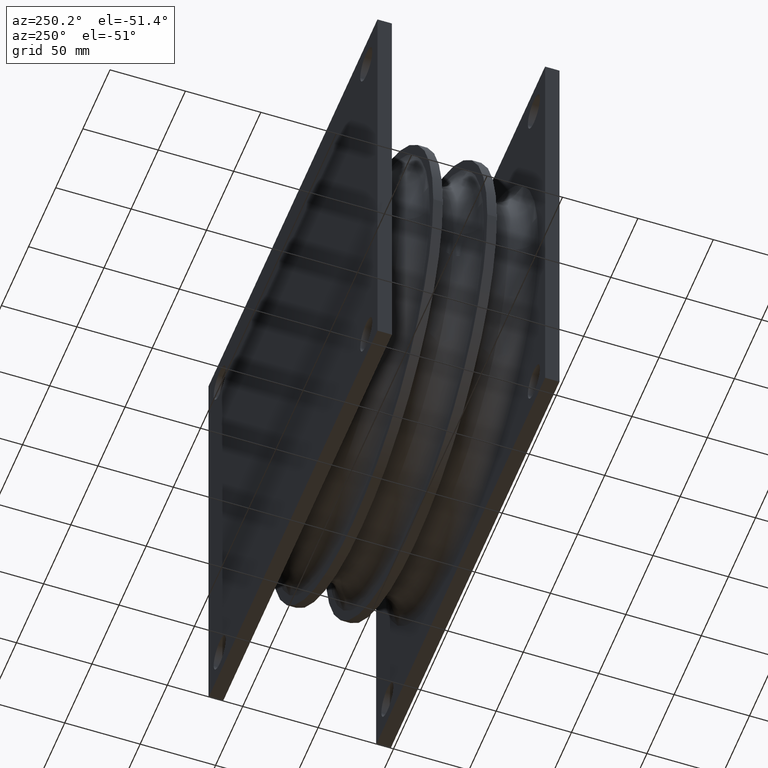
[diagram: clean part render]
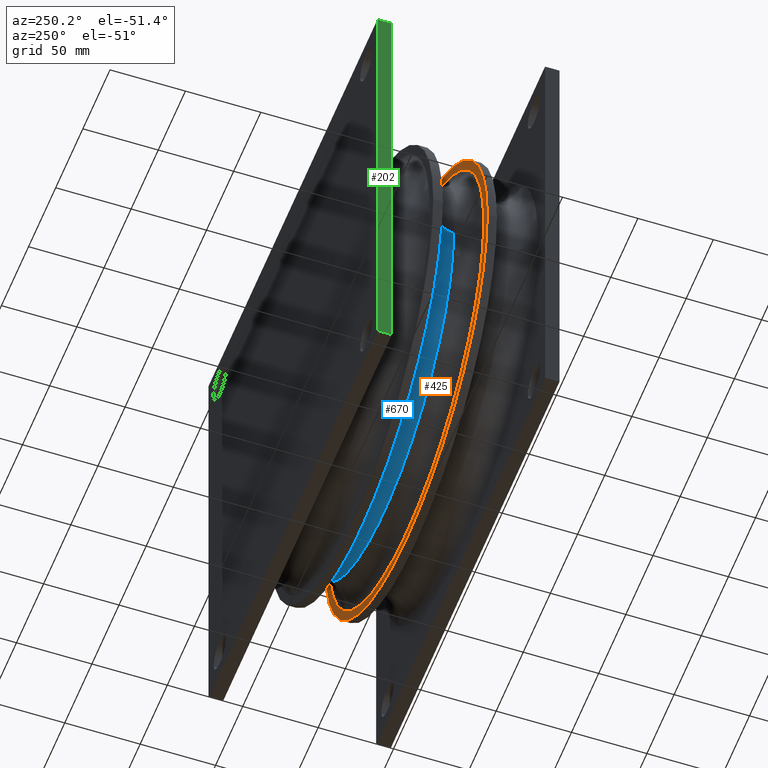
[diagram: same view with three faces highlighted in distinct colors, each labeled with its STEP entity id]
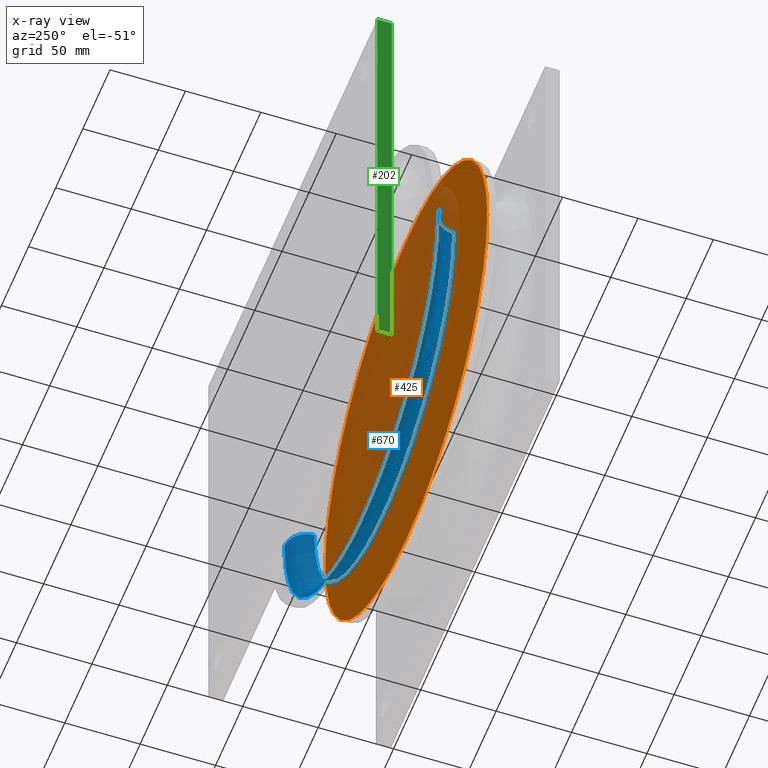
[diagram: x-ray of the same camera — body ghosted, the three highlighted faces saturated]
A machine part, auxiliary view with three faces highlighted in distinct colors.
The next image is the same camera in x-ray (body ghosted, the three faces saturated) — at least one of them is partly hidden behind the body in this view.
Their STEP definitions:

[orange] entity #425 — the highlighted planar face has unit normal (-0, -1, 0).
#172 = ORIENTED_EDGE ( 'NONE', *, *, #1426, .T. ) ;
#228 = FACE_OUTER_BOUND ( 'NONE', #550, .T. ) ;
#294 = CARTESIAN_POINT ( 'NONE',  ( -2.606660711985146300E-017, 1.795000000000001900, 0.0000000000000000000 ) ) ;
#299 = AXIS2_PLACEMENT_3D ( 'NONE', #620, #1223, #1487 ) ;
#396 = CARTESIAN_POINT ( 'NONE',  ( -2.606660711985146300E-017, 1.795000000000001900, 0.0000000000000000000 ) ) ;
#425 = ADVANCED_FACE ( 'NONE', ( #228 ), #882, .F. ) ;
#429 = CIRCLE ( 'NONE', #525, 5.875000000000000000 ) ;
#525 = AXIS2_PLACEMENT_3D ( 'NONE', #294, #1156, #1273 ) ;
#537 = DIRECTION ( 'NONE',  ( -1.000000000000000000, 0.0000000000000000000, 0.0000000000000000000 ) ) ;
#542 = EDGE_CURVE ( 'NONE', #1463, #1029, #1255, .T. ) ;
#550 = EDGE_LOOP ( 'NONE', ( #880, #172 ) ) ;
#616 = CARTESIAN_POINT ( 'NONE',  ( 5.875000000000000000, 1.795000000000001900, 7.194799944990700800E-016 ) ) ;
#620 = CARTESIAN_POINT ( 'NONE',  ( 4.133182947122315700E-016, 1.795000000000001900, 0.0000000000000000000 ) ) ;
#880 = ORIENTED_EDGE ( 'NONE', *, *, #542, .T. ) ;
#882 = PLANE ( 'NONE',  #299 ) ;
#941 = CARTESIAN_POINT ( 'NONE',  ( -5.875000000000000000, 1.795000000000001900, 0.0000000000000000000 ) ) ;
#1029 = VERTEX_POINT ( 'NONE', #616 ) ;
#1156 = DIRECTION ( 'NONE',  ( 1.010333609296569200E-017, 1.000000000000000000, -0.0000000000000000000 ) ) ;
#1201 = AXIS2_PLACEMENT_3D ( 'NONE', #396, #1271, #537 ) ;
#1223 = DIRECTION ( 'NONE',  ( -1.010333609296569200E-017, -1.000000000000000000, 0.0000000000000000000 ) ) ;
#1255 = CIRCLE ( 'NONE', #1201, 5.875000000000000000 ) ;
#1271 = DIRECTION ( 'NONE',  ( 1.010333609296569200E-017, 1.000000000000000000, -0.0000000000000000000 ) ) ;
#1273 = DIRECTION ( 'NONE',  ( -1.000000000000000000, 0.0000000000000000000, 0.0000000000000000000 ) ) ;
#1426 = EDGE_CURVE ( 'NONE', #1029, #1463, #429, .T. ) ;
#1463 = VERTEX_POINT ( 'NONE', #941 ) ;
#1487 = DIRECTION ( 'NONE',  ( 1.000000000000000000, -1.010333609296569200E-017, 0.0000000000000000000 ) ) ;

[blue] entity #670 — the highlighted toroidal blend (fillet) surface has major radius 142.875 mm and minor (blend) radius 14.732 mm.
#29 = DIRECTION ( 'NONE',  ( 1.224646799147353200E-016, -2.765582676147827700E-032, 1.000000000000000000 ) ) ;
#101 = CIRCLE ( 'NONE', #1091, 5.625000000000000000 ) ;
#112 = CARTESIAN_POINT ( 'NONE',  ( 1.604037952165738100E-032, 2.375000000000002200, 0.0000000000000000000 ) ) ;
#147 = CARTESIAN_POINT ( 'NONE',  ( 0.0000000000000000000, 2.375000000000002200, 0.0000000000000000000 ) ) ;
#217 = EDGE_CURVE ( 'NONE', #1502, #776, #985, .T. ) ;
#220 = AXIS2_PLACEMENT_3D ( 'NONE', #1364, #29, #1121 ) ;
#258 = VERTEX_POINT ( 'NONE', #1572 ) ;
#281 = CARTESIAN_POINT ( 'NONE',  ( 5.045000000000000800, 2.375000000000002200, 0.0000000000000000000 ) ) ;
#304 = CARTESIAN_POINT ( 'NONE',  ( -5.625000000000000000, 2.955000000000002700, 6.888638245203861900E-016 ) ) ;
#308 = CARTESIAN_POINT ( 'NONE',  ( 5.625000000000000000, 2.375000000000000900, 0.0000000000000000000 ) ) ;
#317 = AXIS2_PLACEMENT_3D ( 'NONE', #147, #1481, #753 ) ;
#334 = ORIENTED_EDGE ( 'NONE', *, *, #1168, .T. ) ;
#543 = EDGE_LOOP ( 'NONE', ( #1570, #1367, #334, #1165 ) ) ;
#582 = TOROIDAL_SURFACE ( 'NONE', #317, 5.625000000000000000, 0.5799999999999992900 ) ;
#591 = DIRECTION ( 'NONE',  ( -2.258269631761038600E-016, -1.000000000000000000, -0.0000000000000000000 ) ) ;
#662 = EDGE_CURVE ( 'NONE', #1502, #1445, #843, .T. ) ;
#670 = ADVANCED_FACE ( 'NONE', ( #1441 ), #582, .F. ) ;
#747 = DIRECTION ( 'NONE',  ( 1.000000000000000000, -2.165984534124291500E-016, 0.0000000000000000000 ) ) ;
#753 = DIRECTION ( 'NONE',  ( 1.000000000000000000, -2.258269631761038600E-016, 0.0000000000000000000 ) ) ;
#776 = VERTEX_POINT ( 'NONE', #281 ) ;
#809 = CIRCLE ( 'NONE', #954, 0.5799999999999998500 ) ;
#843 = CIRCLE ( 'NONE', #220, 0.5799999999999998500 ) ;
#954 = AXIS2_PLACEMENT_3D ( 'NONE', #308, #1164, #1533 ) ;
#985 = CIRCLE ( 'NONE', #1082, 5.045000000000000800 ) ;
#1082 = AXIS2_PLACEMENT_3D ( 'NONE', #112, #591, #747 ) ;
#1091 = AXIS2_PLACEMENT_3D ( 'NONE', #1130, #1477, #1242 ) ;
#1121 = DIRECTION ( 'NONE',  ( 1.000000000000000000, 0.0000000000000000000, -1.224646799147353200E-016 ) ) ;
#1130 = CARTESIAN_POINT ( 'NONE',  ( -1.231999913475563700E-016, 2.955000000000001800, 0.0000000000000000000 ) ) ;
#1164 = DIRECTION ( 'NONE',  ( 0.0000000000000000000, 0.0000000000000000000, -1.000000000000000000 ) ) ;
#1165 = ORIENTED_EDGE ( 'NONE', *, *, #1395, .F. ) ;
#1168 = EDGE_CURVE ( 'NONE', #1445, #258, #101, .T. ) ;
#1189 = CARTESIAN_POINT ( 'NONE',  ( -5.045000000000000800, 2.375000000000002200, 6.178343101698397200E-016 ) ) ;
#1242 = DIRECTION ( 'NONE',  ( 1.000000000000000000, -1.942647462161253800E-016, 0.0000000000000000000 ) ) ;
#1364 = CARTESIAN_POINT ( 'NONE',  ( -5.625000000000000000, 2.375000000000003600, 6.888638245203861900E-016 ) ) ;
#1367 = ORIENTED_EDGE ( 'NONE', *, *, #662, .T. ) ;
#1395 = EDGE_CURVE ( 'NONE', #776, #258, #809, .T. ) ;
#1441 = FACE_OUTER_BOUND ( 'NONE', #543, .T. ) ;
#1445 = VERTEX_POINT ( 'NONE', #304 ) ;
#1477 = DIRECTION ( 'NONE',  ( -2.258269631761038600E-016, -1.000000000000000000, -0.0000000000000000000 ) ) ;
#1481 = DIRECTION ( 'NONE',  ( -2.258269631761038600E-016, -1.000000000000000000, -0.0000000000000000000 ) ) ;
#1502 = VERTEX_POINT ( 'NONE', #1189 ) ;
#1533 = DIRECTION ( 'NONE',  ( -1.000000000000000000, 0.0000000000000000000, 0.0000000000000000000 ) ) ;
#1570 = ORIENTED_EDGE ( 'NONE', *, *, #217, .F. ) ;
#1572 = CARTESIAN_POINT ( 'NONE',  ( 5.625000000000000000, 2.955000000000000500, 0.0000000000000000000 ) ) ;

[green] entity #202 — the highlighted planar face has unit normal (1, 0, 0).
#9 = CARTESIAN_POINT ( 'NONE',  ( -6.125000000000000000, 4.375000000000000000, 6.125000000000000000 ) ) ;
#22 = FACE_OUTER_BOUND ( 'NONE', #492, .T. ) ;
#111 = CARTESIAN_POINT ( 'NONE',  ( -6.125000000000000000, 4.750000000000000000, 6.125000000000000000 ) ) ;
#202 = ADVANCED_FACE ( 'NONE', ( #22 ), #1566, .F. ) ;
#203 = ORIENTED_EDGE ( 'NONE', *, *, #679, .T. ) ;
#234 = CARTESIAN_POINT ( 'NONE',  ( -6.125000000000000000, 4.750000000000000000, -6.125000000000000000 ) ) ;
#332 = ORIENTED_EDGE ( 'NONE', *, *, #865, .F. ) ;
#492 = EDGE_LOOP ( 'NONE', ( #1324, #332, #1072, #203 ) ) ;
#496 = DIRECTION ( 'NONE',  ( 0.0000000000000000000, 0.0000000000000000000, 1.000000000000000000 ) ) ;
#596 = DIRECTION ( 'NONE',  ( 0.0000000000000000000, 0.0000000000000000000, -1.000000000000000000 ) ) ;
#640 = CARTESIAN_POINT ( 'NONE',  ( -6.125000000000000000, 4.375000000000000000, -6.125000000000000000 ) ) ;
#676 = DIRECTION ( 'NONE',  ( 0.0000000000000000000, 0.0000000000000000000, 1.000000000000000000 ) ) ;
#679 = EDGE_CURVE ( 'NONE', #915, #1054, #1517, .T. ) ;
#688 = VECTOR ( 'NONE', #496, 39.37007874015748100 ) ;
#749 = CARTESIAN_POINT ( 'NONE',  ( -6.125000000000000000, 4.375000000000000000, -6.125000000000000000 ) ) ;
#761 = CARTESIAN_POINT ( 'NONE',  ( -6.125000000000000000, 4.750000000000000000, -6.125000000000000000 ) ) ;
#820 = CARTESIAN_POINT ( 'NONE',  ( -6.125000000000000000, 4.750000000000000000, -6.125000000000000000 ) ) ;
#853 = AXIS2_PLACEMENT_3D ( 'NONE', #1216, #1470, #596 ) ;
#865 = EDGE_CURVE ( 'NONE', #1317, #1234, #1157, .T. ) ;
#915 = VERTEX_POINT ( 'NONE', #234 ) ;
#1014 = VECTOR ( 'NONE', #1474, 39.37007874015748100 ) ;
#1016 = LINE ( 'NONE', #640, #688 ) ;
#1034 = LINE ( 'NONE', #820, #1051 ) ;
#1051 = VECTOR ( 'NONE', #676, 39.37007874015748100 ) ;
#1054 = VERTEX_POINT ( 'NONE', #749 ) ;
#1072 = ORIENTED_EDGE ( 'NONE', *, *, #1291, .F. ) ;
#1110 = CARTESIAN_POINT ( 'NONE',  ( -6.125000000000000000, 4.750000000000000000, 6.125000000000000000 ) ) ;
#1157 = LINE ( 'NONE', #111, #1014 ) ;
#1181 = VECTOR ( 'NONE', #1240, 39.37007874015748100 ) ;
#1212 = EDGE_CURVE ( 'NONE', #1054, #1234, #1016, .T. ) ;
#1216 = CARTESIAN_POINT ( 'NONE',  ( -6.125000000000000000, 4.750000000000000000, -6.125000000000000000 ) ) ;
#1234 = VERTEX_POINT ( 'NONE', #9 ) ;
#1240 = DIRECTION ( 'NONE',  ( -0.0000000000000000000, -1.000000000000000000, -0.0000000000000000000 ) ) ;
#1291 = EDGE_CURVE ( 'NONE', #915, #1317, #1034, .T. ) ;
#1317 = VERTEX_POINT ( 'NONE', #1110 ) ;
#1324 = ORIENTED_EDGE ( 'NONE', *, *, #1212, .T. ) ;
#1470 = DIRECTION ( 'NONE',  ( 1.000000000000000000, 0.0000000000000000000, 0.0000000000000000000 ) ) ;
#1474 = DIRECTION ( 'NONE',  ( -0.0000000000000000000, -1.000000000000000000, -0.0000000000000000000 ) ) ;
#1517 = LINE ( 'NONE', #761, #1181 ) ;
#1566 = PLANE ( 'NONE',  #853 ) ;